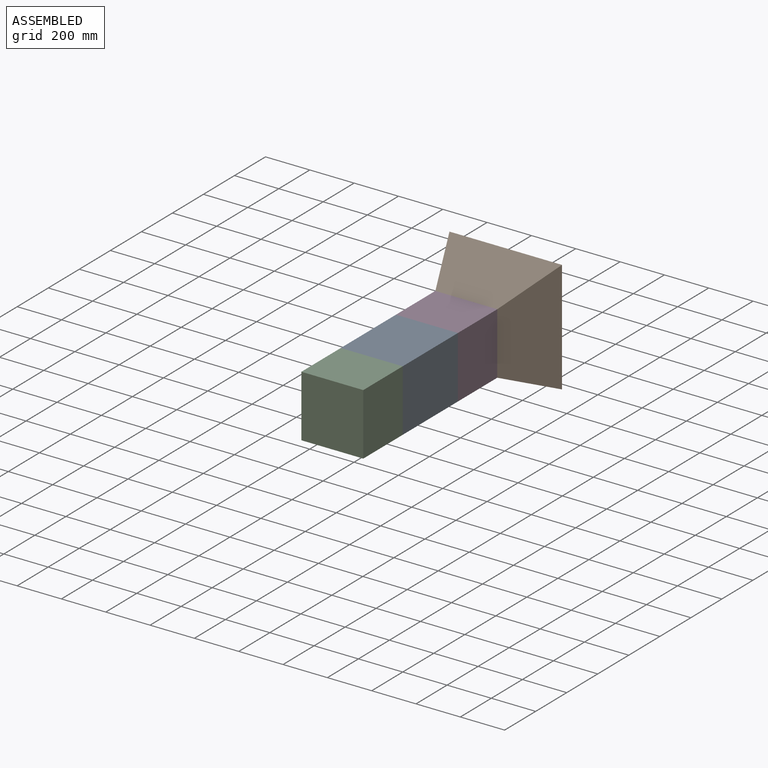
[diagram: assembled view]
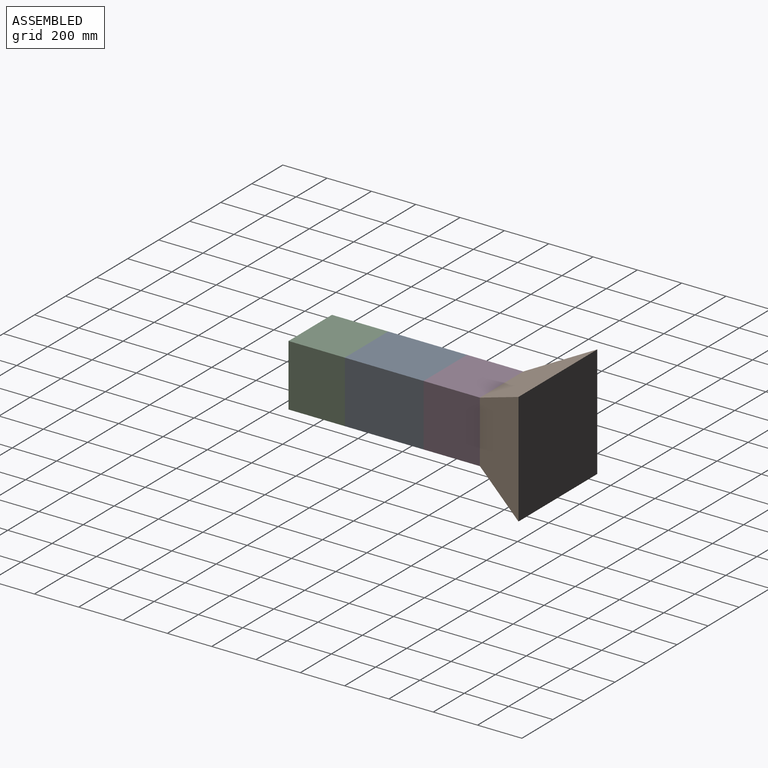
[diagram: assembled view, second angle]
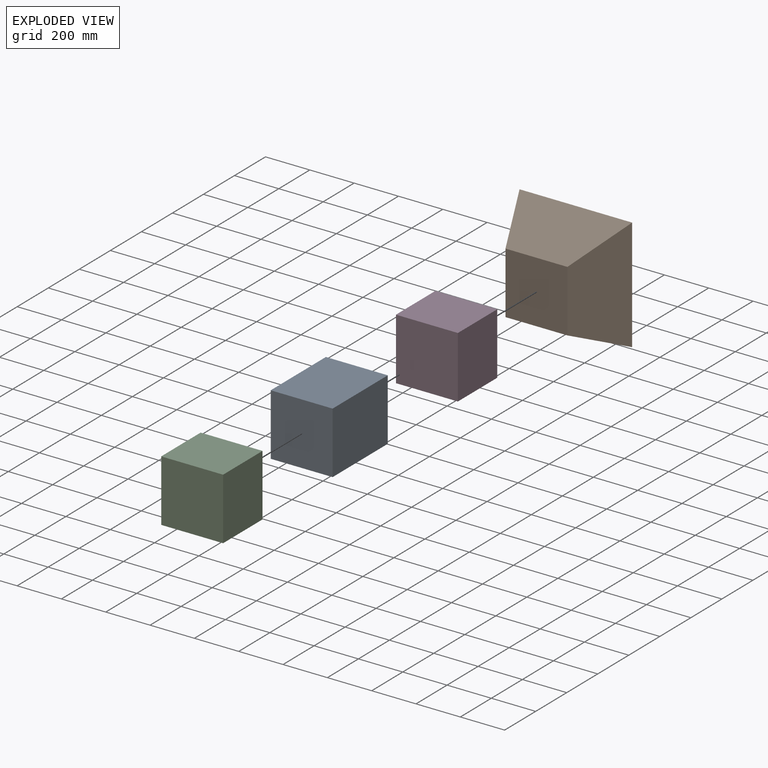
[diagram: exploded view]
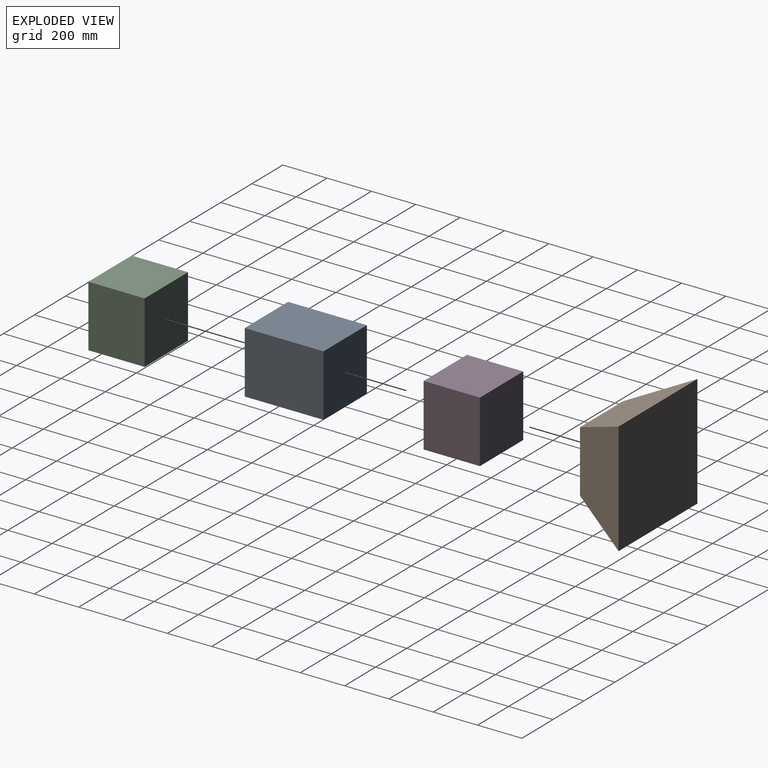
[diagram: exploded view, second angle]
ASSEMBLY  parts=4 mates=3
PART A: 6 faces, bbox 279.4x355.6x279.4 mm
  f0: plane 355.6x279.4mm, normal (-1,0,0), area 99354.6mm2, adj f1,f3,f4,f5
  f1: plane 355.6x279.4mm, normal (0,0,-1), area 99354.6mm2, adj f0,f2,f4,f5
  f2: plane 355.6x279.4mm, normal (1,0,0), area 99354.6mm2, adj f1,f3,f4,f5
  f3: plane 355.6x279.4mm, normal (0,0,1), area 99354.6mm2, adj f0,f2,f4,f5
  f4: plane 279.4x279.4mm, normal (0,-1,0), area 78064.4mm2, adj f0,f1,f2,f3
  f5: plane 279.4x279.4mm, normal (0,1,0), area 78064.4mm2, adj f0,f1,f2,f3
PART B: 6 faces, bbox 508x254x508 mm
  f0: plane 279.4x279.4mm, normal (0,-1,0), area 78064.4mm2, adj f2,f3,f4,f5
  f1: plane 508x508mm, normal (0,1,0), area 258064mm2, adj f2,f3,f4,f5
  f2: plane 508x254mm, normal (0,-0.41,-0.91), area 109658.3mm2, adj f0,f1,f4,f5
  f3: plane 508x254mm, normal (0,-0.41,0.91), area 109658.3mm2, adj f0,f1,f4,f5
  f4: plane 508x254mm, normal (0.91,-0.41,0), area 109658.3mm2, adj f0,f1,f2,f3
  f5: plane 508x254mm, normal (-0.91,-0.41,0), area 109658.3mm2, adj f0,f1,f2,f3
PART C: 6 faces, bbox 279.4x254x279.4 mm
  f0: plane 279.4x254mm, normal (-1,0,0), area 70967.6mm2, adj f1,f3,f4,f5
  f1: plane 279.4x254mm, normal (0,0,-1), area 70967.6mm2, adj f0,f2,f4,f5
  f2: plane 279.4x254mm, normal (1,0,0), area 70967.6mm2, adj f1,f3,f4,f5
  f3: plane 279.4x254mm, normal (0,0,1), area 70967.6mm2, adj f0,f2,f4,f5
  f4: plane 279.4x279.4mm, normal (0,-1,0), area 78064.4mm2, adj f0,f1,f2,f3
  f5: plane 279.4x279.4mm, normal (0,1,0), area 78064.4mm2, adj f0,f1,f2,f3
PART D: same geometry as C
PLACE A t=(-104.06,19.02,-31.55)mm
PLACE B t=(-218.36,527.02,-145.85)mm
PLACE C t=(-104.06,-336.58,-31.55)mm
PLACE D t=(-104.06,273.02,-31.55)mm
MATE parallel C.f5 <-> A.f4  axis (0,1,0) through (35.64,-336.58,108.15)mm
MATE parallel A.f5 <-> D.f4  axis (0,1,0) through (35.64,19.02,108.15)mm
MATE parallel D.f5 <-> B.f0  axis (0,1,0) through (35.64,273.02,108.15)mm
